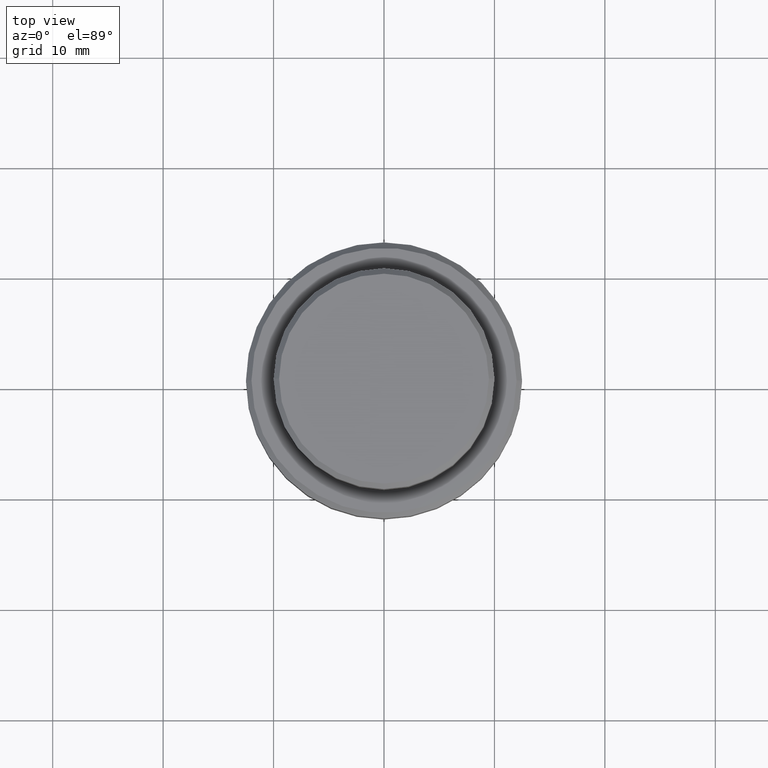
[diagram: clean part render]
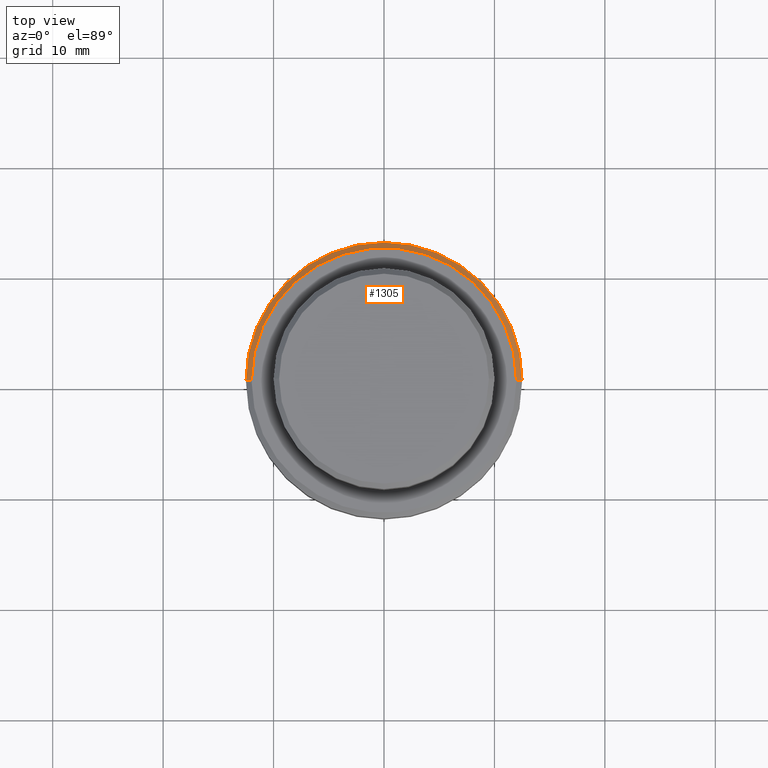
[diagram: same view with one face highlighted and labeled with its STEP entity id]
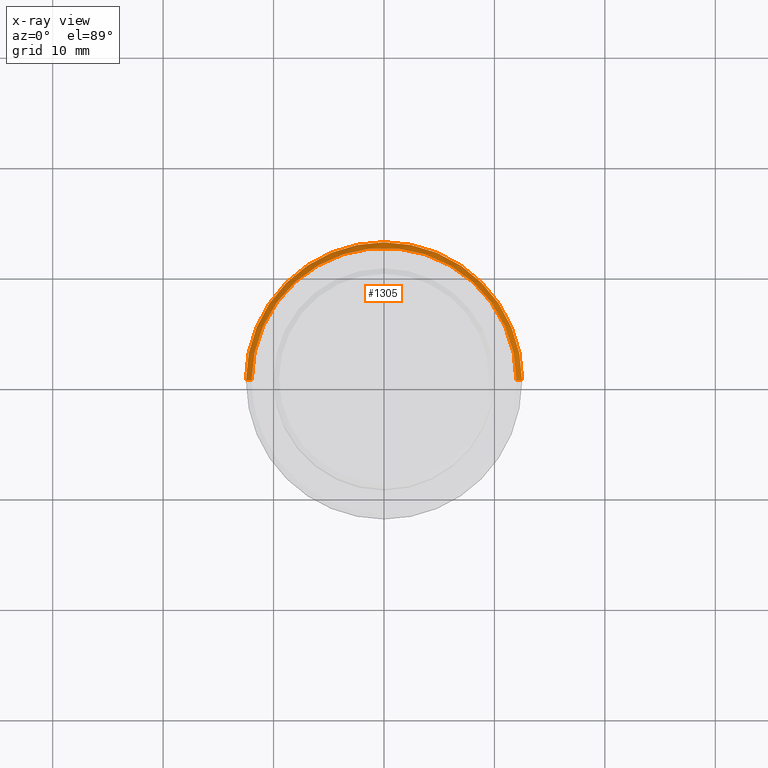
[diagram: x-ray of the same camera — body ghosted, the highlighted face saturated]
A machine part, top view. The second image highlights one B-rep face of the part: STEP entity #1305.
The next image is the same camera in x-ray: the body ghosted, the highlighted face saturated — about 0% of this face is hidden behind the body in this view.
In plain terms, the highlighted conical surface has half-angle 45 deg.
Its self-contained STEP definition (entity closure, byte-faithful):
#52 = AXIS2_PLACEMENT_3D ( 'NONE', #1406, #1400, #407 ) ;
#71 = EDGE_LOOP ( 'NONE', ( #399, #1127, #102, #1380 ) ) ;
#102 = ORIENTED_EDGE ( 'NONE', *, *, #977, .F. ) ;
#116 = CARTESIAN_POINT ( 'NONE',  ( 0.000000000000000000, 0.000000000000000000, -9.000000000000001776 ) ) ;
#121 = CARTESIAN_POINT ( 'NONE',  ( 11.99999999999999645, 1.500192328955507537E-15, -9.000000000000001776 ) ) ;
#206 = DIRECTION ( 'NONE',  ( 0.7071067811865463515, 8.659560562354919300E-17, -0.7071067811865487940 ) ) ;
#212 = CARTESIAN_POINT ( 'NONE',  ( 12.50000000000000000, 0.000000000000000000, -9.500000000000007105 ) ) ;
#249 = EDGE_CURVE ( 'NONE', #252, #411, #1289, .T. ) ;
#252 = VERTEX_POINT ( 'NONE', #121 ) ;
#380 = CARTESIAN_POINT ( 'NONE',  ( 0.000000000000000000, 0.000000000000000000, -9.000000000000001776 ) ) ;
#399 = ORIENTED_EDGE ( 'NONE', *, *, #249, .F. ) ;
#407 = DIRECTION ( 'NONE',  ( 1.000000000000000000, 0.000000000000000000, 0.000000000000000000 ) ) ;
#411 = VERTEX_POINT ( 'NONE', #1009 ) ;
#491 = EDGE_CURVE ( 'NONE', #411, #750, #1323, .T. ) ;
#501 = DIRECTION ( 'NONE',  ( 0.000000000000000000, 0.000000000000000000, -1.000000000000000000 ) ) ;
#572 = CONICAL_SURFACE ( 'NONE', #987, 11.99999999999999645, 0.7853981633974466137 ) ;
#595 = VECTOR ( 'NONE', #880, 1000.000000000000000 ) ;
#597 = VECTOR ( 'NONE', #206, 1000.000000000000000 ) ;
#608 = FACE_OUTER_BOUND ( 'NONE', #71, .T. ) ;
#617 = AXIS2_PLACEMENT_3D ( 'NONE', #116, #1209, #1407 ) ;
#623 = CIRCLE ( 'NONE', #52, 12.50000000000000000 ) ;
#750 = VERTEX_POINT ( 'NONE', #907 ) ;
#880 = DIRECTION ( 'NONE',  ( -0.7071067811865463515, 0.000000000000000000, -0.7071067811865487940 ) ) ;
#907 = CARTESIAN_POINT ( 'NONE',  ( -12.50000000000000000, 1.530808498934191521E-15, -9.500000000000007105 ) ) ;
#933 = EDGE_CURVE ( 'NONE', #252, #1351, #1191, .T. ) ;
#934 = DIRECTION ( 'NONE',  ( -1.000000000000000000, 0.000000000000000000, 0.000000000000000000 ) ) ;
#977 = EDGE_CURVE ( 'NONE', #750, #1351, #623, .T. ) ;
#987 = AXIS2_PLACEMENT_3D ( 'NONE', #380, #501, #934 ) ;
#1009 = CARTESIAN_POINT ( 'NONE',  ( -11.99999999999999645, 0.000000000000000000, -9.000000000000001776 ) ) ;
#1099 = CARTESIAN_POINT ( 'NONE',  ( -11.99999999999999645, 0.000000000000000000, -9.000000000000001776 ) ) ;
#1127 = ORIENTED_EDGE ( 'NONE', *, *, #933, .T. ) ;
#1186 = CARTESIAN_POINT ( 'NONE',  ( 11.99999999999999645, 1.469576158976823553E-15, -9.000000000000001776 ) ) ;
#1191 = LINE ( 'NONE', #1186, #597 ) ;
#1209 = DIRECTION ( 'NONE',  ( -0.000000000000000000, -0.000000000000000000, 1.000000000000000000 ) ) ;
#1289 = CIRCLE ( 'NONE', #617, 11.99999999999999645 ) ;
#1305 = ADVANCED_FACE ( 'NONE', ( #608 ), #572, .T. ) ;
#1323 = LINE ( 'NONE', #1099, #595 ) ;
#1351 = VERTEX_POINT ( 'NONE', #212 ) ;
#1380 = ORIENTED_EDGE ( 'NONE', *, *, #491, .F. ) ;
#1400 = DIRECTION ( 'NONE',  ( 0.000000000000000000, 0.000000000000000000, -1.000000000000000000 ) ) ;
#1406 = CARTESIAN_POINT ( 'NONE',  ( 0.000000000000000000, 0.000000000000000000, -9.500000000000007105 ) ) ;
#1407 = DIRECTION ( 'NONE',  ( 1.000000000000000000, 0.000000000000000000, 0.000000000000000000 ) ) ;